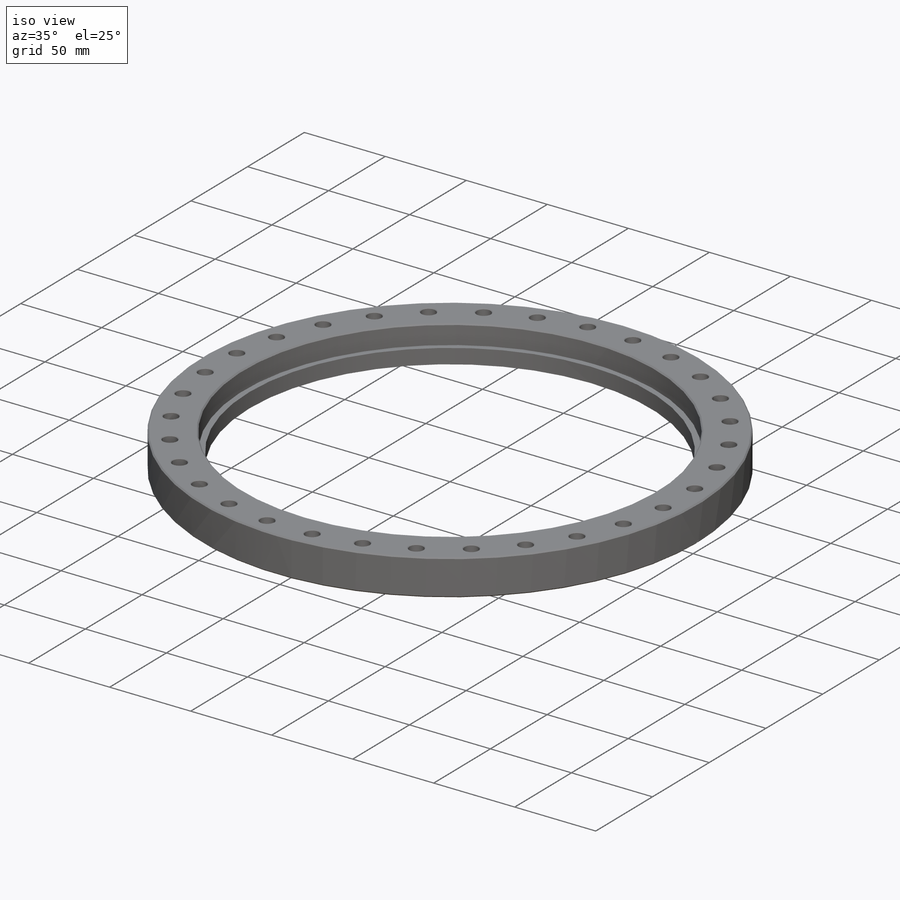
[diagram: iso view]
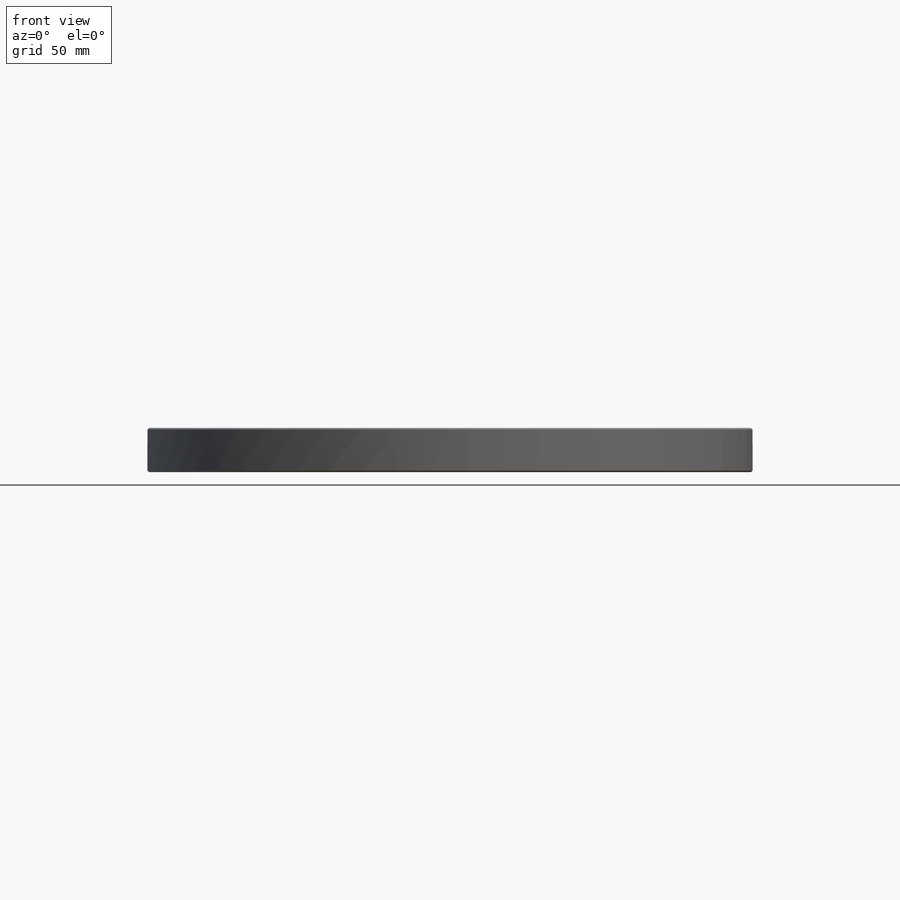
[diagram: front view]
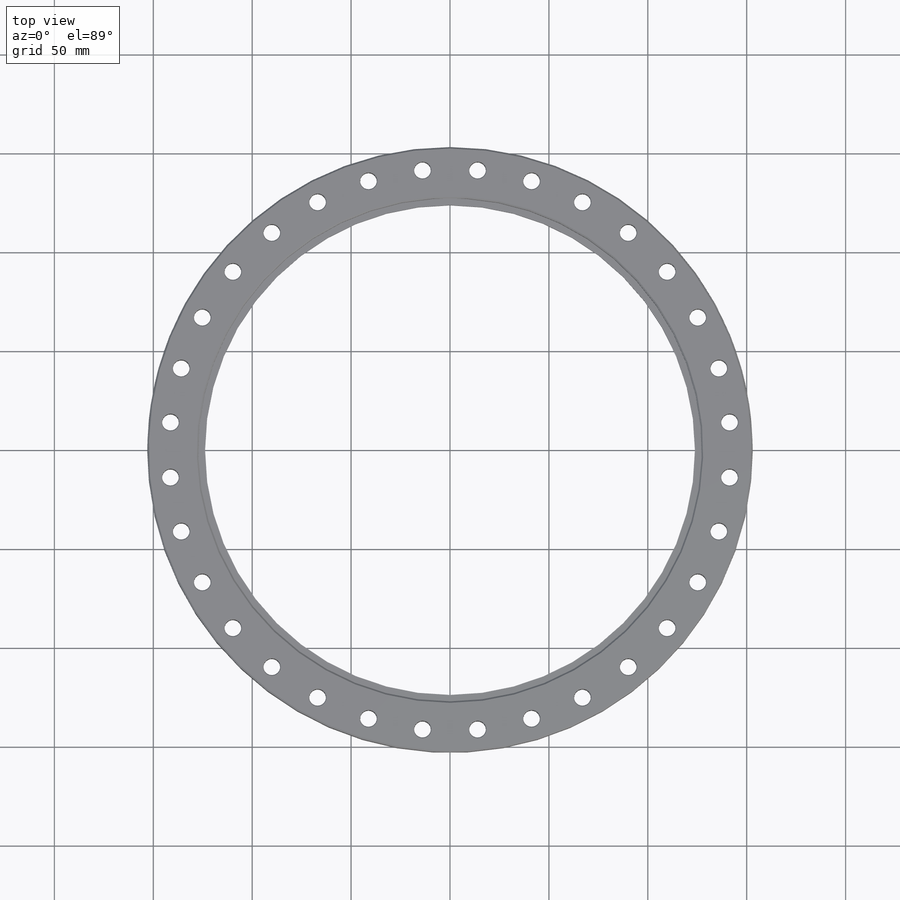
[diagram: top view]
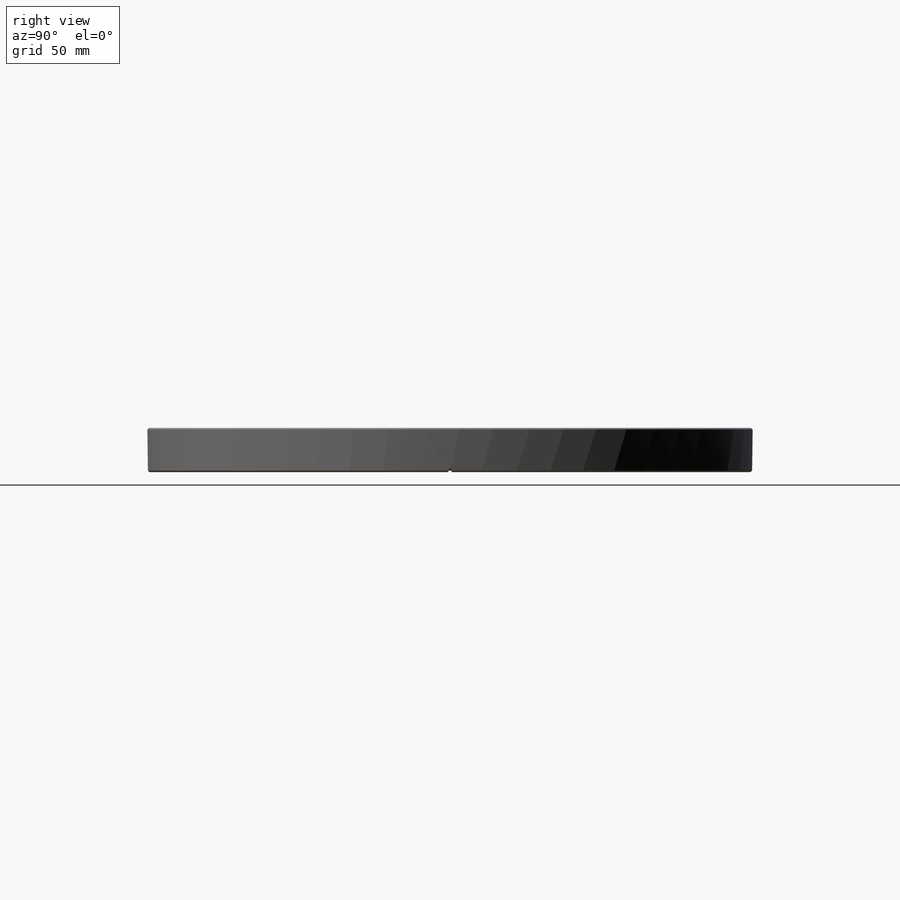
[diagram: right view]
SOLIDWORKS PART (.sldprt)
format: sldprt  version: not decoded by parser v0  size: 317,952 bytes
history: native  units: mm
features: sketch x5, cut_extrude x3, chamfer x2, material x1, extrude x1, cut_revolve x1, pattern_circular x1 (+13 scaffold rows collapsed)
feature tree (27):
  scaffold x13  (default folders/planes/origin — collapsed)
  material  "Material <not specified>"
  sketch  "Sketch1"  dims[D1=305.9938mm D2=247.65mm]
  extrude  "Boss-Extrude1"  Depth=22.352mm
  sketch  "Sketch2"  dims[D1=254.508mm]
  cut_extrude  "Cut-Extrude1"  Depth=11.938mm
  chamfer  "Chamfer1"  Distance=0.762mm Angle=45deg
  sketch  "Sketch4"  dims[c1.D1=85.725mm c1.D2=83.058mm c1.D3=1.6256mm c1.D4=0.6096mm c1.D5=1.27mm c2.D1=73.8124mm c2.D2=11.9126mm c2.D3=9.2456mm c2.D4=1.6256mm c2.D5=0.6096mm c2.D6=1.27mm c3.D1=73.8124mm c3.D2=137.16mm c3.D3=134.366mm c3.D4=1.27mm c3.D5=1.6256mm c3.D6=0.6096mm]
  cut_revolve  "Cut-Revolve1"  Angle=360deg
  sketch  "Sketch3"  dims[c1.D2=8.4328mm c1.D1=90.5256mm c1.D3=141.9987mm c2.D1=100.457mm c3.D1=5.625deg]
  cut_extrude  "Cut-Extrude2"  [1 undecoded]
  chamfer  "Chamfer2"  Distance=0.381mm Angle=45deg
  pattern_circular  "CirPattern1"  Count=32 Angle=11.25deg
  sketch  "Sketch5"  dims[c1.D1=~3.526234mm c1.D2=~111.674471mm c2.D2=3.0deg c2.D1=22.352mm c2.D3=~5.873595mm c3.D1=~6.221828mm c3.D3=~85.471457mm c4.D3=3.0deg]
  cut_extrude  "Cut-Extrude3"  Depth=1.5875mm
decode coverage: 12 of 13 modeling features carry decoded parameters
note: ~ marks probable driven/reference dimensions
note: 1 parameter value undecoded
note: suppression state not decoded; provenance and decode notes live in map.json
